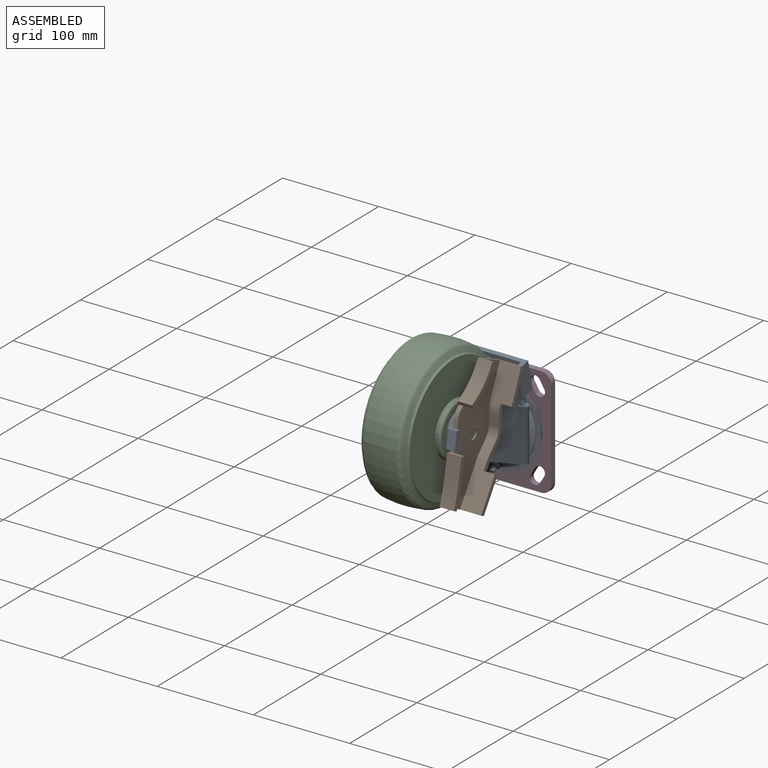
[diagram: assembled view]
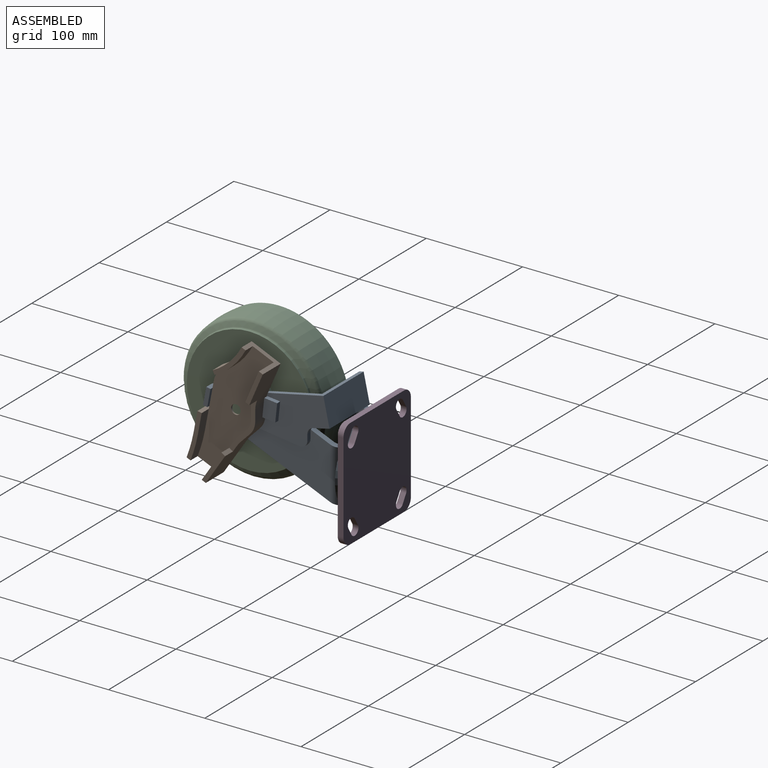
[diagram: assembled view, second angle]
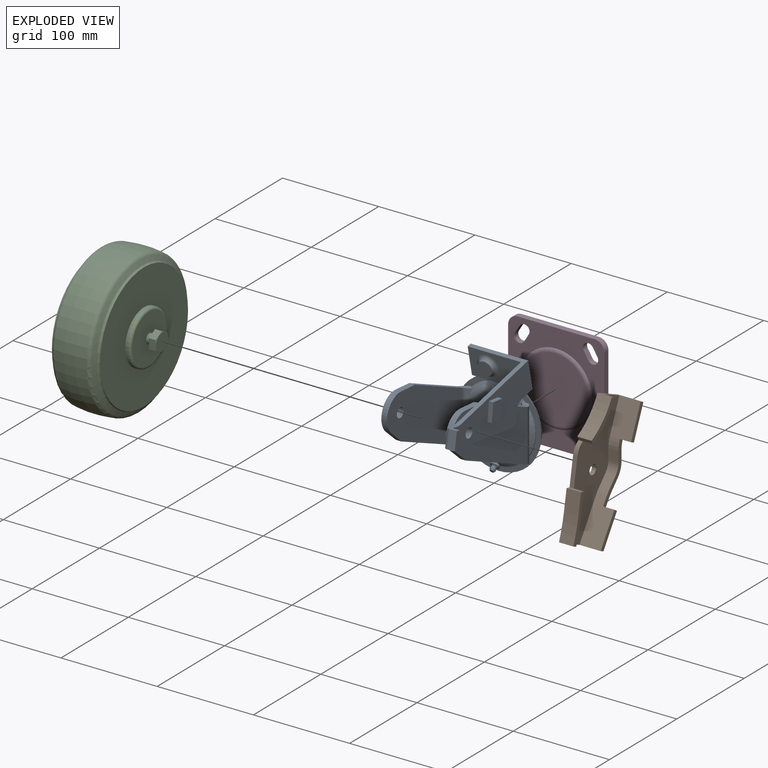
[diagram: exploded view]
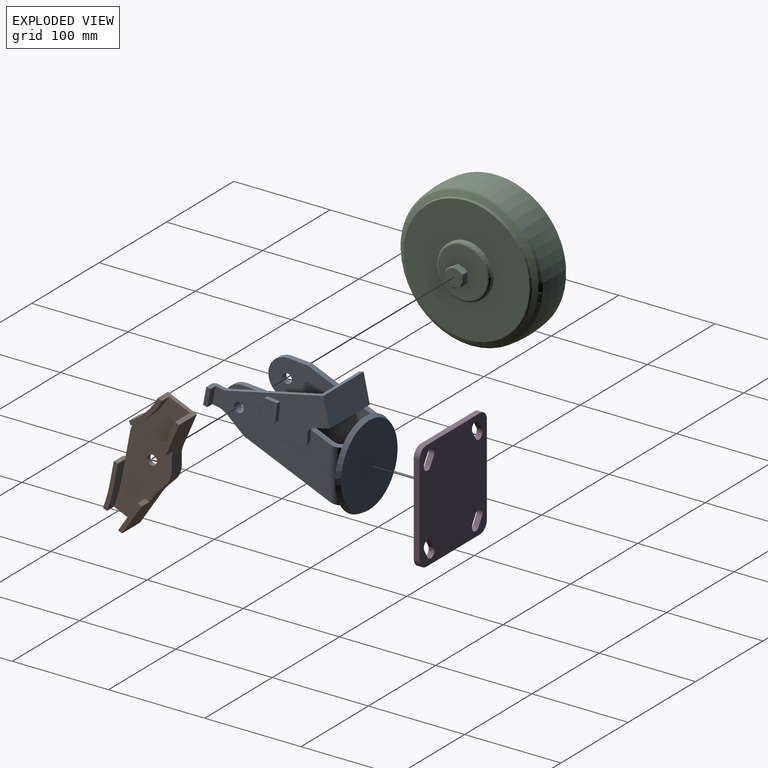
[diagram: exploded view, second angle]
ASSEMBLY  parts=4 mates=3
PART A: 82 faces, bbox 94x139.7x121.1 mm
  f0: cylinder r=2mm len=4mm, axis (0,-0.8,-0.6), area 13.1mm2, adj f1,f35,f36
  f1: plane 8.7x6.95mm, normal (0,0.8,0.6), area 46.9mm2, adj f0,f2
  f2: cylinder r=4.35mm len=8.7mm, axis (0,-0.8,-0.6), area 54.7mm2, adj f1,f3
  f3: torus R=4.35mm, axis (0,0.8,0.6), area 88.2mm2, adj f2,f4
  f4: cone r=2mm half-angle=27.2deg, axis (0,0.8,0.6), area 35.5mm2, adj f3,f5
  f5: plane 4x3.2mm, normal (0,-0.8,-0.6), area 12.6mm2, adj f4
  f6: plane 60.29x56.03mm, normal (0,-1,0), area 2790.9mm2, adj f11,f35,f38,f44
  f7: torus R=30.14mm, axis (0,-1,0), area 11.6mm2, adj f8,f76
  f8: cylinder r=12mm len=56.09mm, axis (0,0,1), area 440.9mm2, adj f7,f39,f40,f41,f42,f56,f76
  f9: cylinder r=39mm len=56.19mm, axis (0,1,0), area 69mm2, adj f16,f41,f43,f79
  f10: cylinder r=30mm len=11.27mm, axis (1,0,0), area 73.9mm2, adj f13,f14,f15,f16,f18,f33,f36,f44
  f11: plane 55.55x4.51mm, normal (0.71,-0.71,0), area 95.8mm2, adj f6,f12,f35,f36,f38,f41,f42,f79
  f12: cylinder r=6mm len=55.41mm, axis (0,0,1), area 254.9mm2, adj f11,f41,f42,f61
  f13: cylinder r=12mm len=56.09mm, axis (0,0,1), area 440.9mm2, adj f10,f18,f33,f34,f37,f43,f77
  f14: cylinder r=6mm len=55.41mm, axis (0,0,1), area 254.9mm2, adj f10,f15,f43,f44
  f15: plane 111.33x85.43mm, normal (-1,0,0), area 5434.4mm2, adj f10,f14,f43,f46,f47,f48,f49,f50
  f16: plane 89.2x89.2mm, normal (0,-1,0), area 1452mm2, adj f9,f10,f33,f34,f39,f40,f41,f42
  f17: plane 121.78x54.04mm, normal (1,0,0), area 3607.8mm2, adj f20,f21,f22,f23,f24,f25,f26,f27
  f18: plane 110.35x62.62mm, normal (1,0,0), area 3145.9mm2, adj f10,f13,f21,f22,f23,f24,f25,f26
  f19: plane 19.89x12.56mm, normal (-1,0,0), area 139.4mm2, adj f27,f28,f29,f30,f50,f71
  f20: plane 59.8x17.06mm, normal (0,0.21,-0.98), area 327.4mm2, adj f17,f21,f32,f69,f70,f75
  f21: cylinder r=7.5mm len=7.33mm, axis (1,0,0), area 45.8mm2, adj f17,f18,f20,f22,f75
  f22: plane 6.18x4.5mm, normal (0,1,0), area 27.8mm2, adj f17,f18,f21,f23
  f23: cylinder r=7.5mm len=8.48mm, axis (1,0,0), area 57.4mm2, adj f17,f18,f22,f24
  f24: plane 72.04x9.48mm, normal (0,-0.13,-0.99), area 327mm2, adj f17,f18,f23,f25
  f25: cylinder r=15mm len=6.32mm, axis (1,0,0), area 30.6mm2, adj f17,f18,f24,f26
  f26: plane 4.5x0.22mm, normal (0,-0.55,-0.83), area 1.2mm2, adj f17,f18,f25,f27
  f27: cylinder r=15mm len=5.52mm, axis (1,0,0), area 27mm2, adj f17,f18,f19,f26,f28
  f28: plane 12x10.67mm, normal (0,-0.18,-0.98), area 78.3mm2, adj f17,f19,f27,f59,f71,f72,f73
  f29: plane 12x10.67mm, normal (0,0.18,0.98), area 78.3mm2, adj f17,f19,f30,f59,f71,f72,f73
  f30: cylinder r=15mm len=5.95mm, axis (1,0,0), area 27mm2, adj f17,f19,f29,f31,f45
  f31: plane 99.84x59.8mm, normal (0,-0.21,0.98), area 708.7mm2, adj f17,f30,f32,f45,f69,f70,f75
  f32: plane 59.8x29.31mm, normal (0,0.98,0.21), area 1794mm2, adj f17,f20,f31,f70
  f33: plane 8.6x2.06mm, normal (0.71,0.71,0), area 14.6mm2, adj f10,f13,f16,f77,f80
  f34: plane 8.72x2.06mm, normal (0.71,0.71,0), area 14.9mm2, adj f13,f16,f43,f77,f80
  f35: torus R=30.14mm, axis (0,-1,0), area 382.1mm2, adj f0,f6,f11,f36,f44
  f36: cone r=39mm half-angle=53.1deg, axis (0,1,0), area 243.3mm2, adj f0,f10,f11,f35,f42,f44,f78
  f37: torus R=30.14mm, axis (0,-1,0), area 11.6mm2, adj f13,f77
  f38: torus R=30.14mm, axis (0,-1,0), area 384.6mm2, adj f6,f11,f44,f79
  f39: plane 8.6x2.06mm, normal (-0.71,0.71,0), area 14.6mm2, adj f8,f16,f42,f76,f81
  f40: plane 8.72x2.06mm, normal (-0.71,0.71,0), area 14.9mm2, adj f8,f16,f41,f76,f81
  f41: cylinder r=30mm len=11.4mm, axis (1,0,0), area 74.3mm2, adj f8,f9,f11,f12,f16,f40,f55,f56
  f42: cylinder r=30mm len=11.27mm, axis (1,0,0), area 73.9mm2, adj f8,f11,f12,f16,f36,f39,f56,f57
  f43: cylinder r=30mm len=11.4mm, axis (1,0,0), area 74.3mm2, adj f9,f13,f14,f15,f16,f18,f34,f44
  f44: plane 55.55x4.51mm, normal (-0.71,-0.71,0), area 95.8mm2, adj f6,f10,f14,f35,f36,f38,f43,f79
  f45: plane 29.4x7.12mm, normal (1,0,0), area 84.3mm2, adj f30,f31,f46,f50
  f46: plane 20.03x6mm, normal (0,0.08,1), area 120.5mm2, adj f15,f45,f47,f50,f75
  f47: plane 69.69x29.52mm, normal (0,0.39,0.92), area 454.1mm2, adj f15,f18,f43,f46,f75
  f48: plane 89.12x37.75mm, normal (0,-0.39,-0.92), area 580.7mm2, adj f10,f15,f18,f49
  f49: plane 15.02x13.34mm, normal (0,-0.66,-0.75), area 120.5mm2, adj f15,f18,f48,f50
  f50: cylinder r=19.5mm len=34.08mm, axis (1,0,0), area 291.4mm2, adj f15,f18,f19,f45,f46,f49
  f51: cylinder r=19.5mm len=34.08mm, axis (1,0,0), area 291.4mm2, adj f52,f53,f56,f61
  f52: plane 20.03x6mm, normal (0,0.08,1), area 120.5mm2, adj f51,f55,f56,f61
  f53: plane 15.02x13.34mm, normal (0,-0.66,-0.75), area 120.5mm2, adj f51,f56,f57,f61
  f54: cone r=42mm half-angle=30deg, axis (0,-1,0), area 1413.9mm2, adj f16,f74
  f55: plane 69.69x29.52mm, normal (0,0.39,0.92), area 454.1mm2, adj f41,f52,f56,f61
  f56: plane 111.33x85.43mm, normal (-1,0,0), area 5434.4mm2, adj f8,f41,f42,f51,f52,f53,f55,f57
  f57: plane 89.12x37.75mm, normal (0,-0.39,-0.92), area 580.7mm2, adj f42,f53,f56,f61
  f58: cylinder r=5mm len=10mm, axis (-1,0,0), area 188.5mm2, adj f56,f61
  f59: plane 17.89x7.5mm, normal (0,0.98,-0.18), area 136.5mm2, adj f17,f28,f29,f73
  f60: cylinder r=5mm len=10.5mm, axis (-1,0,0), area 329.9mm2, adj f15,f17
  f61: plane 111.33x85.43mm, normal (1,0,0), area 5434.4mm2, adj f12,f41,f42,f51,f52,f53,f55,f57
  f62: plane 18.7x4.5mm, normal (0,0.99,-0.11), area 84.6mm2, adj f17,f63,f64,f66
  f63: plane 20.14x15.42mm, normal (1,0,0), area 253.9mm2, adj f62,f64,f65,f66
  f64: plane 13.42x4.5mm, normal (0,-0.11,-0.99), area 60.8mm2, adj f17,f62,f63,f65
  f65: plane 18.7x4.5mm, normal (0,-0.99,0.11), area 84.6mm2, adj f17,f63,f64,f66
  f66: plane 13.42x4.5mm, normal (0,0.11,0.99), area 60.8mm2, adj f17,f62,f63,f65
  f67: torus R=12mm, axis (0,0.98,0.21), area 405.7mm2, adj f68,f69
  f68: plane 15x14.66mm, normal (0,-0.98,-0.21), area 176.7mm2, adj f67
  f69: plane 55.3x29.31mm, normal (0,-0.98,-0.21), area 1206.6mm2, adj f20,f31,f67,f70,f75
  f70: plane 30.27x10.79mm, normal (-1,0,0), area 135mm2, adj f20,f31,f32,f69
  f71: cylinder r=4.5mm len=18.72mm, axis (0,0.18,0.98), area 128.6mm2, adj f19,f28,f29,f72
  f72: plane 17.89x7.5mm, normal (0,-0.98,0.18), area 136.5mm2, adj f28,f29,f71,f73
  f73: plane 18.72x7.77mm, normal (1,0,0), area 81.9mm2, adj f28,f29,f59,f72
  f74: plane 84x84mm, normal (0,1,0), area 5541.8mm2, adj f54
  f75: plane 75.44x36.84mm, normal (-1,0,0), area 1383.1mm2, adj f20,f21,f31,f46,f47,f69
  f76: cone r=39mm half-angle=53.1deg, axis (0,1,0), area 143.3mm2, adj f7,f8,f39,f40,f81
  f77: cone r=39mm half-angle=53.1deg, axis (0,1,0), area 143.3mm2, adj f13,f33,f34,f37,f80
  f78: cylinder r=39mm len=56.3mm, axis (0,1,0), area 69.1mm2, adj f10,f16,f36,f42
  f79: cone r=39mm half-angle=53.1deg, axis (0,1,0), area 250.6mm2, adj f9,f11,f38,f41,f43,f44
  f80: cylinder r=39mm len=47.33mm, axis (0,1,0), area 53.9mm2, adj f16,f33,f34,f77
  f81: cylinder r=39mm len=47.33mm, axis (0,1,0), area 53.9mm2, adj f16,f39,f40,f76
PART B: 36 faces, bbox 130.7x87.3x26.6 mm
  f0: plane 32.75x26.6mm, normal (0.39,0.92,0), area 948.1mm2, adj f1,f9,f18,f23,f32
  f1: plane 130.7x87.3mm, normal (0,0,-1), area 5515.4mm2, adj f0,f2,f3,f4,f5,f6,f7,f18
  f2: plane 28.1x26.6mm, normal (0.92,-0.4,0), area 286mm2, adj f1,f3,f5,f8,f10,f17,f19,f31
  f3: plane 35.99x26.6mm, normal (0.55,0.84,0), area 1068.5mm2, adj f1,f2,f4,f8,f21,f22
  f4: cylinder r=40.5mm len=15mm, axis (0,0,1), area 115mm2, adj f1,f3,f21,f35
  f5: cylinder r=145.5mm len=25.76mm, axis (0,0,1), area 402.5mm2, adj f1,f2,f6,f19
  f6: plane 20.83x15mm, normal (-0.19,-0.98,0), area 318mm2, adj f1,f5,f19,f26
  f7: cylinder r=70.5mm len=30.2mm, axis (0,0,1), area 644mm2, adj f1,f18,f27,f28
  f8: plane 32.88x24.21mm, normal (0,0,1), area 165.6mm2, adj f2,f3,f10,f22
  f9: plane 34.53x18.21mm, normal (0,0,1), area 160.4mm2, adj f0,f16,f18,f23
  f10: plane 36.66x24.13mm, normal (-0.55,-0.84,0), area 892.3mm2, adj f2,f8,f11,f17,f21,f22
  f11: cylinder r=45mm len=10.5mm, axis (0,0,1), area 89.4mm2, adj f10,f12,f17,f21
  f12: plane 10.5x9.57mm, normal (-0.7,-0.72,0), area 140.1mm2, adj f11,f13,f17,f21
  f13: cylinder r=15mm len=10.5mm, axis (0,0,1), area 121.5mm2, adj f12,f14,f17,f21
  f14: plane 10.95x10.5mm, normal (0,-1,0), area 115mm2, adj f13,f15,f17,f21
  f15: cylinder r=27mm len=10.66mm, axis (0,0,1), area 115.1mm2, adj f14,f16,f17,f21
  f16: plane 32.75x22.1mm, normal (-0.39,-0.92,0), area 787.9mm2, adj f9,f15,f17,f18,f23
  f17: plane 127.1x79.03mm, normal (0,0,1), area 4489.9mm2, adj f2,f10,f11,f12,f13,f14,f15,f16
  f18: plane 30.1x26.6mm, normal (-0.92,0.4,0), area 294.4mm2, adj f0,f1,f7,f9,f16,f17,f28,f29
  f19: plane 48.38x15.71mm, normal (0,0,1), area 218.4mm2, adj f2,f5,f6,f26,f30,f31
  f20: cylinder r=5mm len=10mm, axis (0,0,1), area 141.4mm2, adj f1,f17
  f21: plane 56.33x28.88mm, normal (0,0,1), area 280.9mm2, adj f3,f4,f10,f11,f12,f13,f14,f15
  f22: plane 11.6x3.76mm, normal (-0.84,0.55,0), area 52.2mm2, adj f3,f8,f10,f21
  f23: plane 11.6x4.13mm, normal (0.92,-0.39,0), area 52.2mm2, adj f0,f9,f16,f21
  f24: cylinder r=15mm len=10.59mm, axis (0,0,1), area 61.7mm2, adj f1,f17,f25,f27
  f25: plane 28.65x5.4mm, normal (-0.19,-0.98,0), area 131.2mm2, adj f1,f17,f24,f26
  f26: plane 15x4.42mm, normal (-0.98,0.19,0), area 67.5mm2, adj f1,f6,f19,f25,f30
  f27: plane 15x4.01mm, normal (0.45,-0.89,0), area 67.5mm2, adj f1,f7,f24,f28,f29
  f28: plane 34.34x33.6mm, normal (0,0,1), area 200.2mm2, adj f7,f18,f27,f29
  f29: cylinder r=75mm len=32.3mm, axis (0,0,1), area 483.6mm2, adj f17,f18,f27,f28
  f30: plane 20.83x10.5mm, normal (0.19,0.98,0), area 222.6mm2, adj f17,f19,f26,f31
  f31: cylinder r=150mm len=26.71mm, axis (0,0,1), area 292.1mm2, adj f2,f17,f19,f30
  f32: cylinder r=22.5mm len=15mm, axis (0,0,1), area 137mm2, adj f0,f1,f21,f33
  f33: plane 15x10.95mm, normal (0,1,0), area 164.3mm2, adj f1,f21,f32,f34
  f34: cylinder r=19.5mm len=15mm, axis (0,0,1), area 225.6mm2, adj f1,f21,f33,f35
  f35: plane 15x9.57mm, normal (0.7,0.72,0), area 200.2mm2, adj f1,f4,f21,f34
PART C: 59 faces, bbox 92x159.9x159.9 mm
  f0: plane 9x8.5mm, normal (0,0.5,-0.87), area 82.6mm2, adj f1,f5,f24,f25,f30,f33
  f1: plane 9x8.5mm, normal (0,-0.5,-0.87), area 82.6mm2, adj f0,f2,f7,f24,f26,f33
  f2: cone r=16.36mm half-angle=60deg, axis (-1,0,0), area 5mm2, adj f1,f6,f7
  f3: plane 9x8.5mm, normal (0,-0.5,0.87), area 82.6mm2, adj f4,f7,f27,f28,f31,f32
  f4: plane 9x8.5mm, normal (0,0.5,0.87), area 82.6mm2, adj f3,f5,f28,f29,f31,f37
  f5: plane 10.39x8.5mm, normal (0,1,0), area 82.6mm2, adj f0,f4,f25,f29,f30,f37
  f6: plane 18x18mm, normal (1,0,0), area 175.9mm2, adj f2,f8,f29,f30,f31,f32,f33
  f7: plane 10.39x8.5mm, normal (0,-1,0), area 82.6mm2, adj f1,f2,f3,f26,f27,f32
  f8: cylinder r=5mm len=10mm, axis (-1,0,0), area 188.5mm2, adj f6,f10
  f9: cone r=18mm half-angle=60deg, axis (-1,0,0), area 5mm2, adj f13,f17,f18
  f10: plane 50.8x50.8mm, normal (-1,0,0), area 1948.3mm2, adj f8,f11
  f11: torus R=25.4mm, axis (1,0,0), area 666mm2, adj f10,f58
  f12: plane 20.78x18mm, normal (-1,0,0), area 202.1mm2, adj f13,f14,f15,f16,f17,f42,f43
  f13: plane 10.39x7.2mm, normal (0,-1,0), area 72mm2, adj f9,f12,f14,f17,f38
  f14: plane 9x7.2mm, normal (0,-0.5,0.87), area 72mm2, adj f12,f13,f15,f38,f39
  f15: plane 9x7.2mm, normal (0,0.5,0.87), area 72mm2, adj f12,f14,f19,f39,f42
  f16: plane 9x7.2mm, normal (0,0.5,-0.87), area 72mm2, adj f12,f17,f40,f41,f42
  f17: plane 9x7.2mm, normal (0,-0.5,-0.87), area 72mm2, adj f9,f12,f13,f16,f40
  f18: plane 18x18mm, normal (1,0,0), area 254.5mm2, adj f9,f19,f38,f39,f40,f41
  f19: cone r=18mm half-angle=60deg, axis (-1,0,0), area 5mm2, adj f15,f18,f42
  f20: torus R=7.9mm, axis (1,0,0), area 75.3mm2, adj f21,f22
  f21: cylinder r=8.8mm len=17.6mm, axis (-1,0,0), area 132.7mm2, adj f20,f23
  f22: plane 15.8x15.8mm, normal (-1,0,0), area 117.5mm2, adj f20,f34
  f23: plane 18x18mm, normal (-1,0,0), area 11.2mm2, adj f21,f24,f25,f26,f27,f28,f37
  f24: cone r=9mm half-angle=60deg, axis (1,0,0), area 5mm2, adj f0,f1,f23
  f25: cone r=9mm half-angle=60deg, axis (1,0,0), area 5mm2, adj f0,f5,f23
  f26: cone r=9mm half-angle=60deg, axis (1,0,0), area 5mm2, adj f1,f7,f23
  f27: cone r=9mm half-angle=60deg, axis (1,0,0), area 5mm2, adj f3,f7,f23
  f28: cone r=9mm half-angle=60deg, axis (1,0,0), area 5mm2, adj f3,f4,f23
  f29: cone r=16.36mm half-angle=60deg, axis (-1,0,0), area 5mm2, adj f4,f5,f6
  f30: cone r=16.36mm half-angle=60deg, axis (-1,0,0), area 5mm2, adj f0,f5,f6
  f31: cone r=16.36mm half-angle=60deg, axis (-1,0,0), area 5mm2, adj f3,f4,f6
  f32: cone r=16.36mm half-angle=60deg, axis (-1,0,0), area 5mm2, adj f3,f6,f7
  f33: cone r=16.36mm half-angle=60deg, axis (-1,0,0), area 5mm2, adj f0,f1,f6
  f34: cylinder r=5mm len=10mm, axis (-1,0,0), area 28.9mm2, adj f22,f35
  f35: cone r=4.08mm half-angle=45deg, axis (1,0,0), area 37.1mm2, adj f34,f36
  f36: plane 8.16x8.16mm, normal (-1,0,0), area 52.3mm2, adj f35
  f37: cone r=9mm half-angle=60deg, axis (1,0,0), area 5mm2, adj f4,f5,f23
  f38: cone r=18mm half-angle=60deg, axis (-1,0,0), area 5mm2, adj f13,f14,f18
  f39: cone r=18mm half-angle=60deg, axis (-1,0,0), area 5mm2, adj f14,f15,f18
  f40: cone r=18mm half-angle=60deg, axis (-1,0,0), area 5mm2, adj f16,f17,f18
  f41: cone r=18mm half-angle=60deg, axis (-1,0,0), area 5mm2, adj f16,f18,f42
  f42: plane 10.39x7.2mm, normal (0,1,0), area 72mm2, adj f12,f15,f16,f19,f41
  f43: cylinder r=5mm len=10mm, axis (-1,0,0), area 188.5mm2, adj f12,f44
  f44: plane 50.8x50.8mm, normal (1,0,0), area 1948.3mm2, adj f43,f45
  f45: torus R=25.4mm, axis (1,0,0), area 666mm2, adj f44,f46
  f46: cylinder r=27.9mm len=55.8mm, axis (-1,0,0), area 525.9mm2, adj f45,f47
  f47: plane 130.7x130.7mm, normal (1,0,0), area 10971.1mm2, adj f46,f48
  f48: cylinder r=65.35mm len=130.7mm, axis (-1,0,0), area 289.8mm2, adj f47,f49
  f49: torus R=67.35mm, axis (1,0,0), area 949.3mm2, adj f48,f50
  f50: cone r=70.9mm half-angle=65.8deg, axis (-1,0,0), area 2066.4mm2, adj f49,f51
  f51: torus R=68.85mm, axis (1,0,0), area 2293.5mm2, adj f50,f52
  f52: revolved ~150x150mm, area 15677.7mm2, adj f51,f53
  f53: torus R=68.85mm, axis (1,0,0), area 2293.5mm2, adj f52,f54
  f54: cone r=66.53mm half-angle=65.8deg, axis (1,0,0), area 2066.4mm2, adj f53,f55
  f55: torus R=67.35mm, axis (1,0,0), area 949.3mm2, adj f54,f56
  f56: cylinder r=65.35mm len=130.7mm, axis (-1,0,0), area 289.8mm2, adj f55,f57
  f57: plane 130.7x130.7mm, normal (-1,0,0), area 10971.1mm2, adj f56,f58
  f58: cylinder r=27.9mm len=55.8mm, axis (-1,0,0), area 525.9mm2, adj f11,f57
PART D: 28 faces, bbox 100x8.2x114 mm
  f0: plane 114x100mm, normal (0,-1,0), area 6078.7mm2, adj f2,f3,f5,f6,f7,f8,f9,f10
  f1: plane 114x100mm, normal (0,1,0), area 10525.4mm2, adj f2,f5,f6,f7,f8,f9,f10,f11
  f2: plane 80x6mm, normal (0,0,-1), area 480mm2, adj f0,f1,f5,f11
  f3: torus R=34.05mm, axis (0,-1,0), area 1000.1mm2, adj f0,f4
  f4: plane 68.1x68.1mm, normal (0,-1,0), area 3642.4mm2, adj f3
  f5: cylinder r=10mm len=10mm, axis (0,1,0), area 94.2mm2, adj f0,f1,f2,f6
  f6: plane 94x6mm, normal (-1,0,0), area 564mm2, adj f0,f1,f5,f7
  f7: cylinder r=10mm len=10mm, axis (0,1,0), area 94.2mm2, adj f0,f1,f6,f8
  f8: plane 80x6mm, normal (0,0,1), area 480mm2, adj f0,f1,f7,f9
  f9: cylinder r=10mm len=10mm, axis (0,1,0), area 94.2mm2, adj f0,f1,f8,f10
  f10: plane 94x6mm, normal (1,0,0), area 564mm2, adj f0,f1,f9,f11
  f11: cylinder r=10mm len=10mm, axis (0,1,0), area 94.2mm2, adj f0,f1,f2,f10
  f12: plane 7.95x6mm, normal (-0.86,0,0.52), area 55.7mm2, adj f0,f1,f13,f15
  f13: cylinder r=5.5mm len=10.21mm, axis (0,1,0), area 103.7mm2, adj f0,f1,f12,f14
  f14: plane 7.95x6mm, normal (0.86,0,-0.52), area 55.7mm2, adj f0,f1,f13,f15
  f15: cylinder r=5.5mm len=10.21mm, axis (0,1,0), area 103.7mm2, adj f0,f1,f12,f14
  f16: plane 7.95x6mm, normal (0.86,0,0.52), area 55.7mm2, adj f0,f1,f17,f19
  f17: cylinder r=5.5mm len=10.21mm, axis (0,1,0), area 103.7mm2, adj f0,f1,f16,f18
  f18: plane 7.95x6mm, normal (-0.86,0,-0.52), area 55.7mm2, adj f0,f1,f17,f19
  f19: cylinder r=5.5mm len=10.21mm, axis (0,1,0), area 103.7mm2, adj f0,f1,f16,f18
  f20: plane 7.95x6mm, normal (0.86,0,0.52), area 55.7mm2, adj f0,f1,f21,f23
  f21: cylinder r=5.5mm len=10.21mm, axis (0,1,0), area 103.7mm2, adj f0,f1,f20,f22
  f22: plane 7.95x6mm, normal (-0.86,0,-0.52), area 55.7mm2, adj f0,f1,f21,f23
  f23: cylinder r=5.5mm len=10.21mm, axis (0,1,0), area 103.7mm2, adj f0,f1,f20,f22
  f24: plane 7.95x6mm, normal (-0.86,0,0.52), area 55.7mm2, adj f0,f1,f25,f27
  f25: cylinder r=5.5mm len=10.21mm, axis (0,1,0), area 103.7mm2, adj f0,f1,f24,f26
  f26: plane 7.95x6mm, normal (0.86,0,-0.52), area 55.7mm2, adj f0,f1,f25,f27
  f27: cylinder r=5.5mm len=10.21mm, axis (0,1,0), area 103.7mm2, adj f0,f1,f24,f26
PLACE A t=(9.49,-102.41,127.25)mm
PLACE B rot(axis=(0,1,0),90deg) t=(50.49,-209.21,168.25)mm
PLACE C t=(9.49,-209.21,168.25)mm
PLACE D t=(9.49,-102.41,127.25)mm
MATE fastened A.f50 <-> B.f20  axis (1,0,0) through (50.49,-209.21,168.25)mm
MATE fastened C.f2 <-> A.f50  axis (1,0,0) through (39.99,-209.21,168.25)mm
MATE fastened A.f7 <-> D.f3  axis (0,1,0) through (9.49,-102.41,127.25)mm
